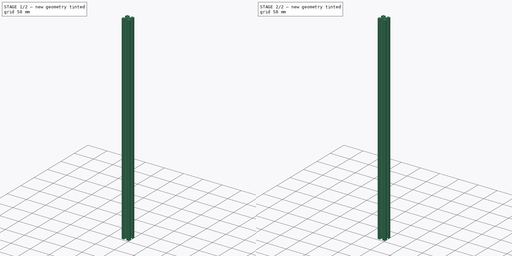
[diagram: build sequence overview — one tinted view per stage of 2, left to right]
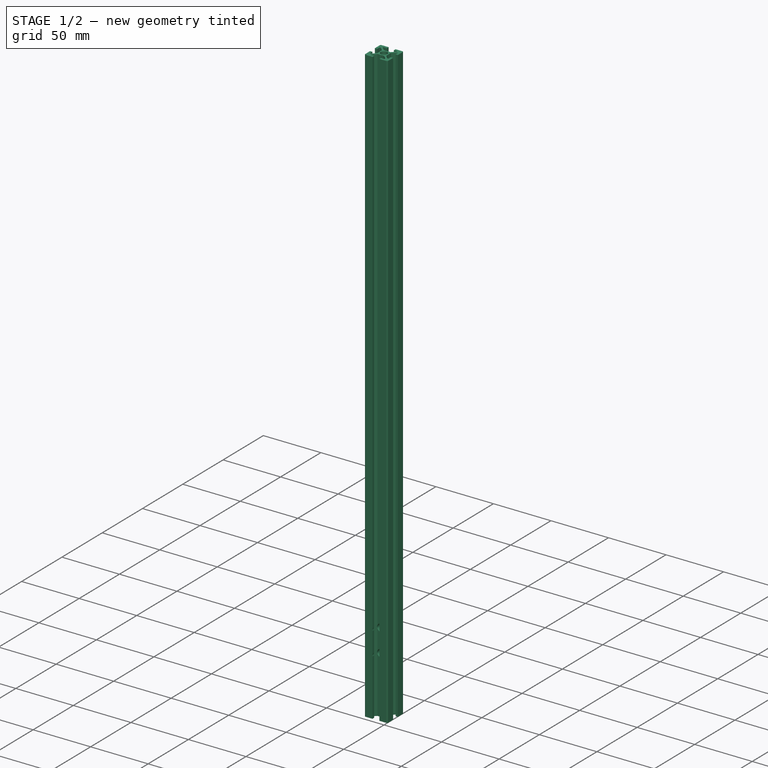
[diagram: stage 1 of 2 — iso view after this stage's code; geometry added in this stage tinted green]
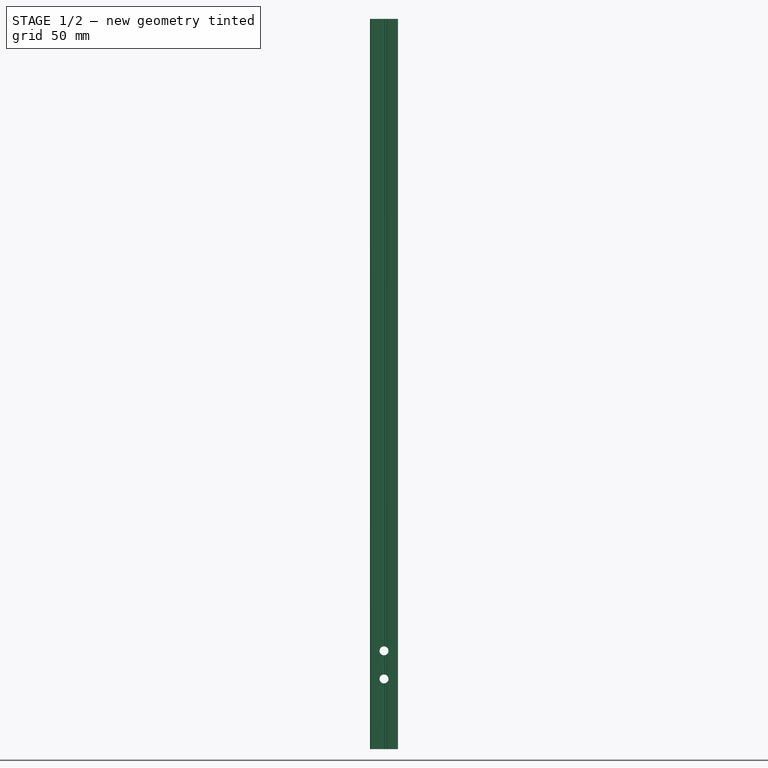
[diagram: stage 1 of 2 — front view after this stage's code; geometry added in this stage tinted green]
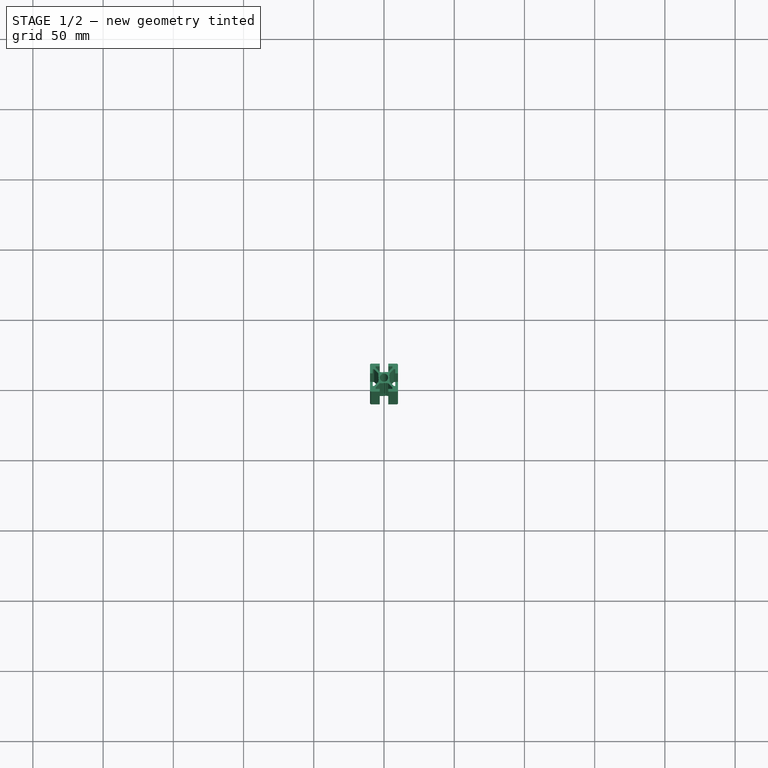
[diagram: stage 1 of 2 — top view after this stage's code; geometry added in this stage tinted green]
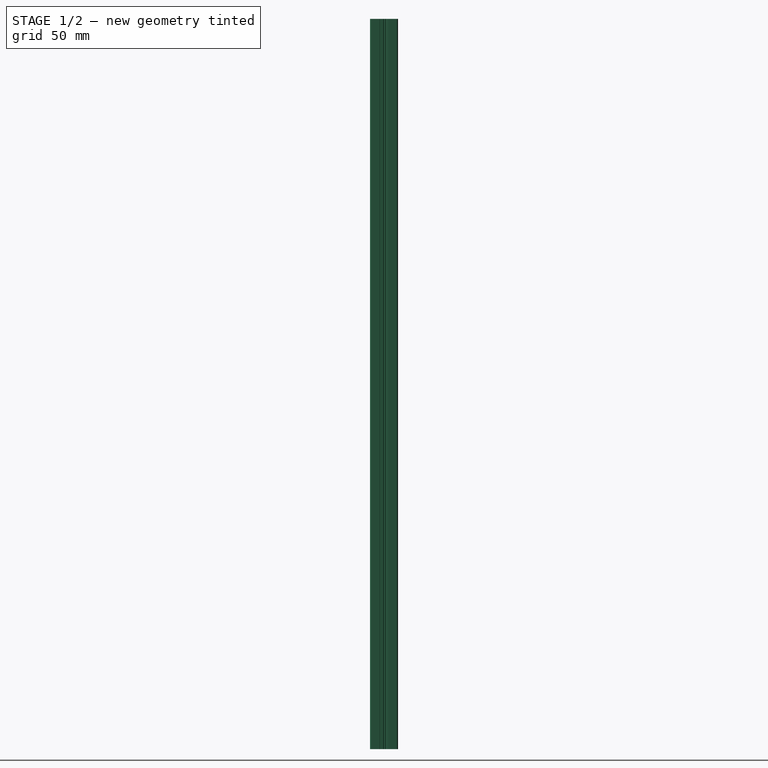
[diagram: stage 1 of 2 — right view after this stage's code; geometry added in this stage tinted green]
FCSTD DOCUMENT  (FreeCAD 0.17R13346 (Git))
Label: Z-Profile_2020
License: All rights reserved
LicenseURL: http://en.wikipedia.org/wiki/All_rights_reserved
objects: Sketcher::SketchObject×3, PartDesign::Pocket×2, PartDesign::Body×2, PartDesign::Pad×1
note: 11 computed .brp shape members not serialized (recipe doc carries the construction recipe); baked Part::Feature solids carry a one-line shape summary decoded from their .brp

FEATURE [Sketcher::SketchObject] Sketch001
  MapMode = 4
  sketch-geometry (77):
    g0: LineSegment StartX=-8 StartY=-3 StartZ=0 EndX=-10 EndY=-3 EndZ=0
    g1: LineSegment StartX=-10 StartY=-3 StartZ=0 EndX=-10 EndY=-9 EndZ=0
    g2: ArcOfCircle CenterX=-9 CenterY=-9 CenterZ=0 NormalX=0 NormalY=0 NormalZ=1 AngleXU=0 Radius=1 StartAngle=3.14159 EndAngle=4.71239
    g3: LineSegment StartX=-9 StartY=-10 StartZ=0 EndX=-3 EndY=-10 EndZ=0
    g4: LineSegment StartX=-3 StartY=-10 StartZ=0 EndX=-3 EndY=-8 EndZ=0
    g5: LineSegment StartX=-3 StartY=-8 StartZ=0 EndX=-6 EndY=-8 EndZ=0
    g6: LineSegment StartX=-6 StartY=-8 StartZ=0 EndX=-6 EndY=-7.06066 EndZ=0
    g7: LineSegment StartX=-6 StartY=-7.06066 StartZ=0 EndX=-2.93934 EndY=-4 EndZ=0
    g8: LineSegment StartX=-2.93934 StartY=-4 StartZ=0 EndX=-0.65359 EndY=-4 EndZ=0
    g9: ArcOfCircle CenterX=-0.65359 CenterY=-3.5 CenterZ=0 NormalX=0 NormalY=0 NormalZ=1 AngleXU=0 Radius=0.5 StartAngle=4.71239 EndAngle=5.23599
    g10: LineSegment StartX=-0.40359 StartY=-3.93301 StartZ=0 EndX=0 EndY=-3.7 EndZ=0
    g11: LineSegment StartX=0 StartY=-3.7 StartZ=0 EndX=0.40359 EndY=-3.93301 EndZ=0
    g12: ArcOfCircle CenterX=0.65359 CenterY=-3.5 CenterZ=0 NormalX=0 NormalY=0 NormalZ=1 AngleXU=0 Radius=0.5 StartAngle=4.18879 EndAngle=5.23599
    g13: LineSegment StartX=0.90359 StartY=-3.93301 StartZ=0 EndX=1.21889 EndY=-3.75098 EndZ=0
    g14: LineSegment StartX=1.21889 StartY=-3.75098 StartZ=0 EndX=2.5 EndY=-4 EndZ=0
    g15: LineSegment StartX=2.5 StartY=-4 StartZ=0 EndX=2.93934 EndY=-4 EndZ=0
    g16: LineSegment StartX=2.93934 StartY=-4 StartZ=0 EndX=6 EndY=-7.06066 EndZ=0
    g17: LineSegment StartX=6 StartY=-7.06066 StartZ=0 EndX=6 EndY=-8 EndZ=0
    g18: LineSegment StartX=6 StartY=-8 StartZ=0 EndX=3 EndY=-8 EndZ=0
    g19: LineSegment StartX=3 StartY=-8 StartZ=0 EndX=3 EndY=-10 EndZ=0
    g20: LineSegment StartX=3 StartY=-10 StartZ=0 EndX=9 EndY=-10 EndZ=0
    g21: ArcOfCircle CenterX=9 CenterY=-9 CenterZ=0 NormalX=0 NormalY=0 NormalZ=1 AngleXU=0 Radius=1 StartAngle=4.71239 EndAngle=6.28319
    g22: LineSegment StartX=10 StartY=-9 StartZ=0 EndX=10 EndY=-3 EndZ=0
    g23: LineSegment StartX=10 StartY=-3 StartZ=0 EndX=8 EndY=-3 EndZ=0
    g24: LineSegment StartX=8 StartY=-3 StartZ=0 EndX=8 EndY=-6 EndZ=0
    g25: LineSegment StartX=8 StartY=-6 StartZ=0 EndX=7.06066 EndY=-6 EndZ=0
    g26: LineSegment StartX=7.06066 StartY=-6 StartZ=0 EndX=4 EndY=-2.93934 EndZ=0
    g27: LineSegment StartX=4 StartY=-2.93934 StartZ=0 EndX=4 EndY=-0.65359 EndZ=0
    g28: ArcOfCircle CenterX=3.5 CenterY=-0.65359 CenterZ=0 NormalX=0 NormalY=0 NormalZ=1 AngleXU=0 Radius=0.5 StartAngle=0 EndAngle=0.523599
    g29: LineSegment StartX=3.93301 StartY=-0.40359 StartZ=0 EndX=3.7 EndY=0 EndZ=0
    g30: LineSegment StartX=3.7 StartY=0 StartZ=0 EndX=3.93301 EndY=0.40359 EndZ=0
    g31: ArcOfCircle CenterX=3.5 CenterY=0.65359 CenterZ=0 NormalX=0 NormalY=0 NormalZ=1 AngleXU=0 Radius=0.5 StartAngle=5.75959 EndAngle=6.80678
    g32: LineSegment StartX=3.93301 StartY=0.90359 StartZ=0 EndX=3.75098 EndY=1.21889 EndZ=0
    g33: LineSegment StartX=3.75098 StartY=1.21889 StartZ=0 EndX=4 EndY=2.5 EndZ=0
    g34: LineSegment StartX=4 StartY=2.5 StartZ=0 EndX=4 EndY=2.93934 EndZ=0
    g35: LineSegment StartX=4 StartY=2.93934 StartZ=0 EndX=7.06066 EndY=6 EndZ=0
    g36: LineSegment StartX=7.06066 StartY=6 StartZ=0 EndX=8 EndY=6 EndZ=0
    g37: LineSegment StartX=8 StartY=6 StartZ=0 EndX=8 EndY=3 EndZ=0
    g38: LineSegment StartX=8 StartY=3 StartZ=0 EndX=10 EndY=3 EndZ=0
    g39: LineSegment StartX=10 StartY=3 StartZ=0 EndX=10 EndY=9 EndZ=0
    g40: ArcOfCircle CenterX=9 CenterY=9 CenterZ=0 NormalX=0 NormalY=0 NormalZ=1 AngleXU=0 Radius=1 StartAngle=0 EndAngle=1.5708
    g41: LineSegment StartX=9 StartY=10 StartZ=0 EndX=3 EndY=10 EndZ=0
    g42: LineSegment StartX=3 StartY=10 StartZ=0 EndX=3 EndY=8 EndZ=0
    g43: LineSegment StartX=3 StartY=8 StartZ=0 EndX=6 EndY=8 EndZ=0
    g44: LineSegment StartX=6 StartY=8 StartZ=0 EndX=6 EndY=7.06066 EndZ=0
    g45: LineSegment StartX=6 StartY=7.06066 StartZ=0 EndX=2.93934 EndY=4 EndZ=0
    g46: LineSegment StartX=2.93934 StartY=4 StartZ=0 EndX=0.65359 EndY=4 EndZ=0
    g47: ArcOfCircle CenterX=0.65359 CenterY=3.5 CenterZ=0 NormalX=0 NormalY=0 NormalZ=1 AngleXU=0 Radius=0.5 StartAngle=1.5708 EndAngle=2.0944
    g48: LineSegment StartX=0.40359 StartY=3.93301 StartZ=0 EndX=0 EndY=3.7 EndZ=0
    g49: LineSegment StartX=0 StartY=3.7 StartZ=0 EndX=-0.40359 EndY=3.93301 EndZ=0
    g50: ArcOfCircle CenterX=-0.65359 CenterY=3.5 CenterZ=0 NormalX=0 NormalY=0 NormalZ=1 AngleXU=0 Radius=0.5 StartAngle=1.0472 EndAngle=2.0944
    g51: LineSegment StartX=-0.90359 StartY=3.93301 StartZ=0 EndX=-1.21889 EndY=3.75098 EndZ=0
    g52: LineSegment StartX=-1.21889 StartY=3.75098 StartZ=0 EndX=-2.5 EndY=4 EndZ=0
    g53: LineSegment StartX=-2.5 StartY=4 StartZ=0 EndX=-2.93934 EndY=4 EndZ=0
    g54: LineSegment StartX=-2.93934 StartY=4 StartZ=0 EndX=-6 EndY=7.06066 EndZ=0
    g55: LineSegment StartX=-6 StartY=7.06066 StartZ=0 EndX=-6 EndY=8 EndZ=0
    g56: LineSegment StartX=-6 StartY=8 StartZ=0 EndX=-3 EndY=8 EndZ=0
    g57: LineSegment StartX=-3 StartY=8 StartZ=0 EndX=-3 EndY=10 EndZ=0
    g58: LineSegment StartX=-3 StartY=10 StartZ=0 EndX=-9 EndY=10 EndZ=0
    g59: ArcOfCircle CenterX=-9 CenterY=9 CenterZ=0 NormalX=0 NormalY=0 NormalZ=1 AngleXU=0 Radius=1 StartAngle=1.5708 EndAngle=3.14159
    g60: LineSegment StartX=-10 StartY=9 StartZ=0 EndX=-10 EndY=3 EndZ=0
    g61: LineSegment StartX=-10 StartY=3 StartZ=0 EndX=-8 EndY=3 EndZ=0
    g62: LineSegment StartX=-8 StartY=3 StartZ=0 EndX=-8 EndY=6 EndZ=0
    g63: LineSegment StartX=-8 StartY=6 StartZ=0 EndX=-7.06066 EndY=6 EndZ=0
    g64: LineSegment StartX=-7.06066 StartY=6 StartZ=0 EndX=-4 EndY=2.93934 EndZ=0
    g65: LineSegment StartX=-4 StartY=2.93934 StartZ=0 EndX=-4 EndY=0.65359 EndZ=0
    g66: ArcOfCircle CenterX=-3.5 CenterY=0.65359 CenterZ=0 NormalX=0 NormalY=0 NormalZ=1 AngleXU=0 Radius=0.5 StartAngle=3.14159 EndAngle=3.66519
    g67: LineSegment StartX=-3.93301 StartY=0.40359 StartZ=0 EndX=-3.7 EndY=0 EndZ=0
    g68: LineSegment StartX=-3.7 StartY=0 StartZ=0 EndX=-3.93301 EndY=-0.40359 EndZ=0
    g69: ArcOfCircle CenterX=-3.5 CenterY=-0.65359 CenterZ=0 NormalX=0 NormalY=0 NormalZ=1 AngleXU=0 Radius=0.5 StartAngle=2.61799 EndAngle=3.66519
    g70: LineSegment StartX=-3.93301 StartY=-0.90359 StartZ=0 EndX=-3.75098 EndY=-1.21889 EndZ=0
    g71: LineSegment StartX=-3.75098 StartY=-1.21889 StartZ=0 EndX=-4 EndY=-2.5 EndZ=0
    g72: LineSegment StartX=-4 StartY=-2.5 StartZ=0 EndX=-4 EndY=-2.93934 EndZ=0
    g73: LineSegment StartX=-4 StartY=-2.93934 StartZ=0 EndX=-7.06066 EndY=-6 EndZ=0
    g74: LineSegment StartX=-7.06066 StartY=-6 StartZ=0 EndX=-8 EndY=-6 EndZ=0
    g75: LineSegment StartX=-8 StartY=-6 StartZ=0 EndX=-8 EndY=-3 EndZ=0
    g76: Circle CenterX=0 CenterY=0 CenterZ=0 NormalX=0 NormalY=0 NormalZ=1 AngleXU=0 Radius=2.9
  constraints (105):
    c: Horizontal(g0)
    c: Coincident(g0,g1)
    c: Vertical(g1)
    c: Coincident(g1,g2)
    c: Coincident(g2,g3)
    c: Horizontal(g3)
    c: Coincident(g3,g4)
    c: Coincident(g4,g5)
    c: Horizontal(g5)
    c: Coincident(g5,g6)
    c: Coincident(g6,g7)
    c: Coincident(g7,g8)
    c: Horizontal(g8)
    c: Coincident(g8,g9)
    c: Coincident(g9,g10)
    c: Coincident(g10,g11)
    c: Coincident(g11,g12)
    c: Coincident(g12,g13)
    c: Coincident(g13,g14)
    c: Coincident(g14,g15)
    c: Horizontal(g15)
    c: Coincident(g15,g16)
    c: Coincident(g16,g17)
    c: Coincident(g17,g18)
    c: Coincident(g18,g19)
    c: Vertical(g19)
    c: Coincident(g19,g20)
    c: Horizontal(g20)
    c: Coincident(g20,g21)
    c: Coincident(g21,g22)
    c: Vertical(g22)
    c: Coincident(g22,g23)
    c: Horizontal(g23)
    c: Coincident(g23,g24)
    c: Vertical(g24)
    c: Coincident(g24,g25)
    c: Coincident(g25,g26)
    c: Coincident(g26,g27)
    c: Vertical(g27)
    c: Coincident(g27,g28)
    c: Coincident(g28,g29)
    c: Coincident(g29,g30)
    c: Coincident(g30,g31)
    c: Coincident(g31,g32)
    c: Coincident(g32,g33)
    c: Coincident(g33,g34)
    c: Vertical(g34)
    c: Coincident(g34,g35)
    c: Coincident(g35,g36)
    c: Coincident(g36,g37)
    c: Coincident(g37,g38)
    c: Horizontal(g38)
    c: Coincident(g38,g39)
    c: Vertical(g39)
    c: Coincident(g39,g40)
    c: Coincident(g40,g41)
    c: Horizontal(g41)
    c: Coincident(g41,g42)
    c: Coincident(g42,g43)
    c: Horizontal(g43)
    c: Coincident(g43,g44)
    c: Coincident(g44,g45)
    c: Coincident(g45,g46)
    c: Horizontal(g46)
    c: Coincident(g46,g47)
    c: Coincident(g47,g48)
    c: Coincident(g48,g49)
    c: Coincident(g49,g50)
    c: Coincident(g50,g51)
    c: Coincident(g51,g52)
    c: Coincident(g52,g53)
    c: Horizontal(g53)
    c: Coincident(g53,g54)
    c: Coincident(g54,g55)
    c: Vertical(g55)
    c: Coincident(g55,g56)
    c: Coincident(g56,g57)
    c: Vertical(g57)
    c: Coincident(g57,g58)
    c: Horizontal(g58)
    c: Coincident(g58,g59)
    c: Coincident(g59,g60)
    c: Vertical(g60)
    c: Coincident(g60,g61)
    c: Horizontal(g61)
    c: Coincident(g61,g62)
    c: Vertical(g62)
    c: Coincident(g62,g63)
    c: Horizontal(g63)
    c: Coincident(g63,g64)
    c: Coincident(g64,g65)
    c: Vertical(g65)
    c: Coincident(g65,g66)
    c: Coincident(g66,g67)
    c: Coincident(g67,g68)
    c: Coincident(g68,g69)
    c: Coincident(g69,g70)
    c: Coincident(g70,g71)
    c: Coincident(g71,g72)
    c: Vertical(g72)
    c: Coincident(g72,g73)
    c: Coincident(g73,g74)
    c: Coincident(g74,g75)
    c: Coincident(g75,g0)
    c: Radius(g76) = 2.9
FEATURE [PartDesign::Pad] Pad
  Length = 520
  Length2 = 100
  Profile = -> Sketch001
  Type = 0
FEATURE [Sketcher::SketchObject] Sketch
  MapMode = 5
  Placement = pos=(0,-10,0) rot=(1,0,0;1.5708rad)
  Support = -> [Pad]
  sketch-geometry (2):
    g0: Circle CenterX=0 CenterY=70 CenterZ=0 NormalX=0 NormalY=0 NormalZ=1 AngleXU=0 Radius=3.175
    g1: Circle CenterX=0 CenterY=50 CenterZ=0 NormalX=0 NormalY=0 NormalZ=1 AngleXU=0 Radius=3.175
  constraints (6):
    c: DistanceX(g1) = 0
    c: DistanceY(g1) = 50
    c: DistanceX(g0) = 0
    c: DistanceY(g0) = 70
    c: Equal(g1,g0)
    c: Radius(g0) = 3.175
FEATURE [PartDesign::Pocket] Pocket
  BaseFeature = -> Pad
  Length = 5
  Length2 = 100
  Profile = -> Sketch
  Type = 1
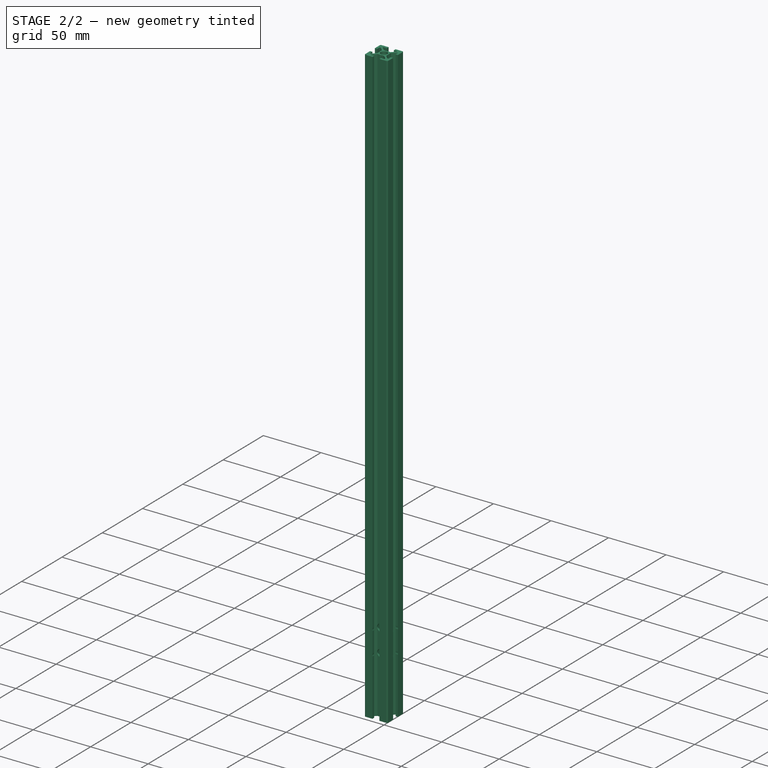
[diagram: stage 2 of 2 — iso view after this stage's code; geometry added in this stage tinted green]
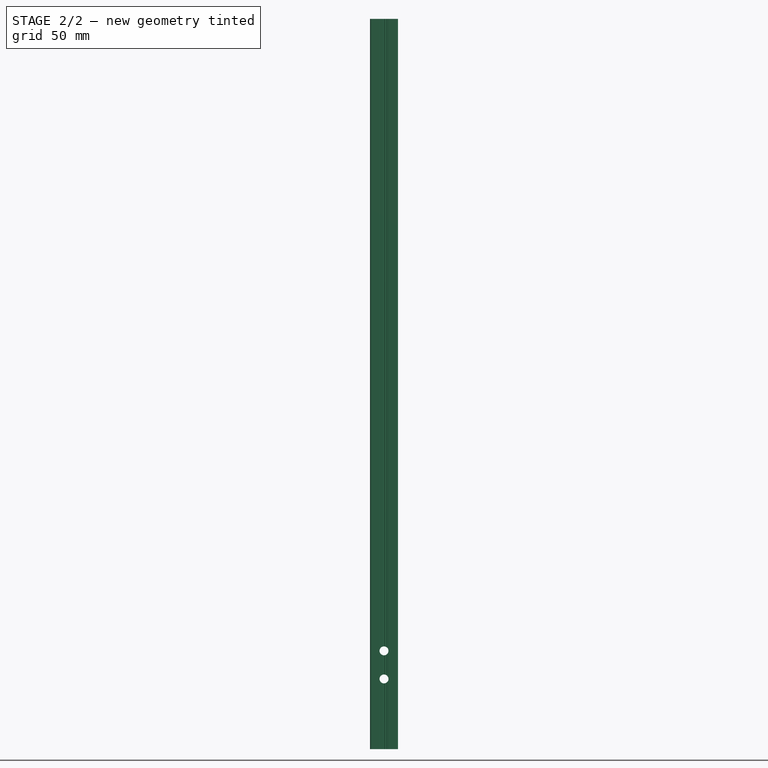
[diagram: stage 2 of 2 — front view after this stage's code; geometry added in this stage tinted green]
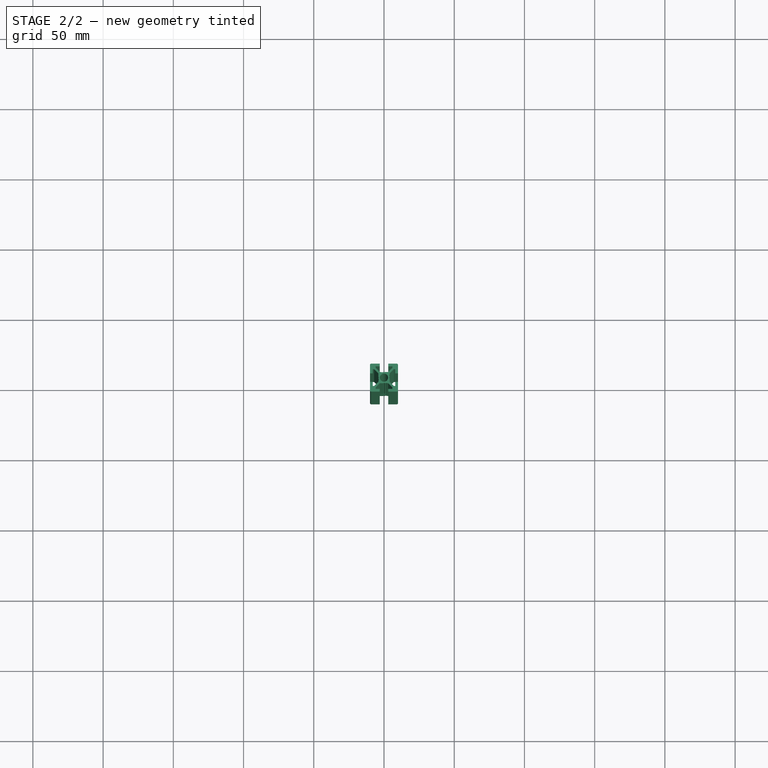
[diagram: stage 2 of 2 — top view after this stage's code; geometry added in this stage tinted green]
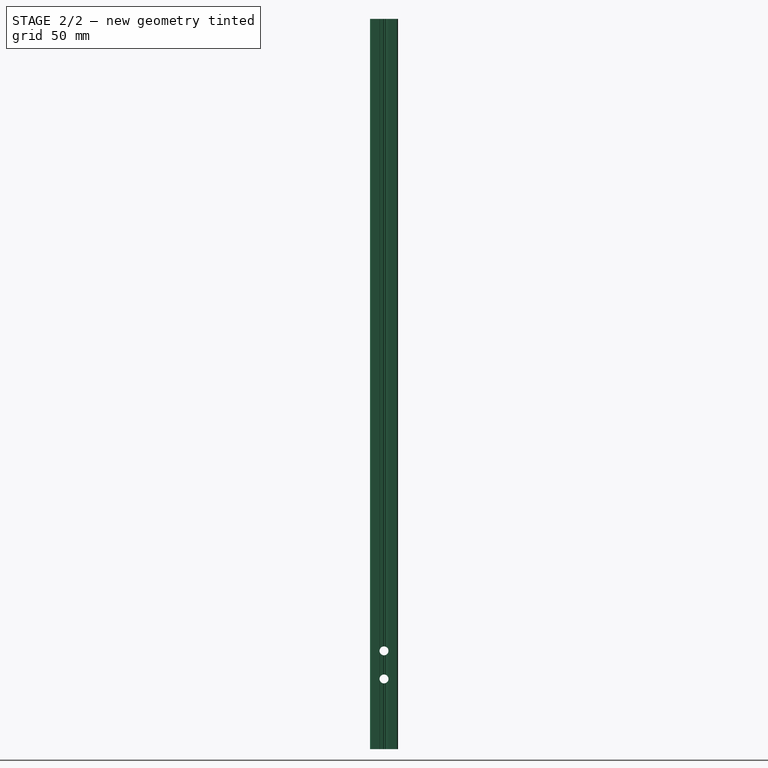
[diagram: stage 2 of 2 — right view after this stage's code; geometry added in this stage tinted green]
FEATURE [Sketcher::SketchObject] Sketch002
  MapMode = 5
  Placement = pos=(-10,0,0) rot=(0.57735,-0.57735,-0.57735;2.0944rad)
  Support = -> [Pocket]
  sketch-geometry (2):
    g0: Circle CenterX=0 CenterY=50 CenterZ=0 NormalX=0 NormalY=0 NormalZ=1 AngleXU=0 Radius=3.175
    g1: Circle CenterX=0 CenterY=70 CenterZ=0 NormalX=0 NormalY=0 NormalZ=1 AngleXU=0 Radius=3.175
  constraints (6):
    c: Equal(g1,g0)
    c: Radius(g1) = 3.175
    c: DistanceX(g0) = 0
    c: DistanceY(g0) = 50
    c: DistanceX(g1) = 0
    c: DistanceY(g1) = 70
FEATURE [PartDesign::Pocket] Pocket001
  BaseFeature = -> Pocket
  Length = 5
  Length2 = 100
  Profile = -> Sketch002
  Type = 1
FEATURE [PartDesign::Body] Body
  Group = -> [Sketch001,Pad,Sketch,Pocket,Sketch002,Pocket001]
  Origin = -> Origin
  Tip = -> Pocket001
FEATURE [PartDesign::Body] Body001
  Origin = -> Origin001
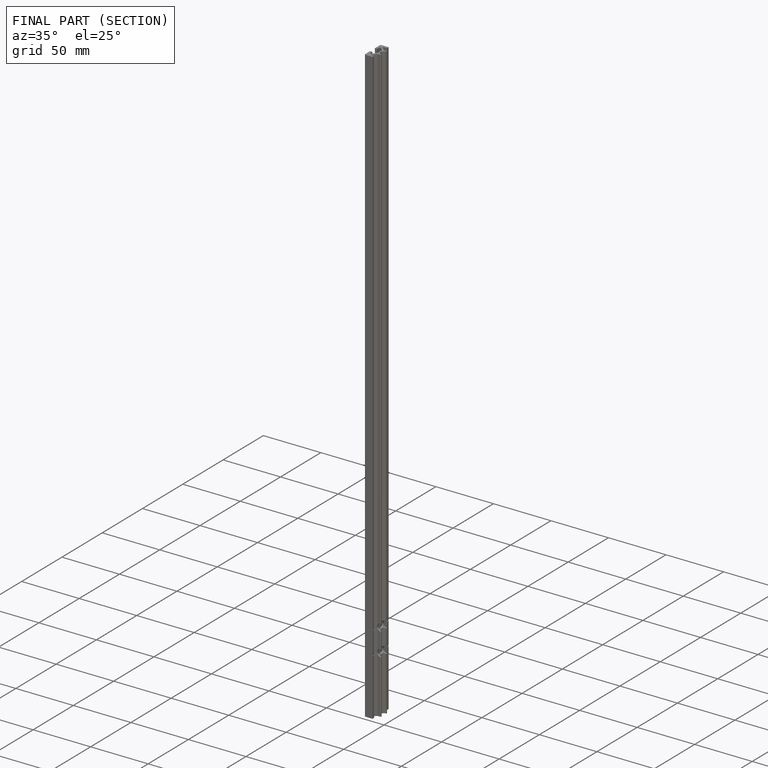
[diagram: finished part — half-section view (interior)]
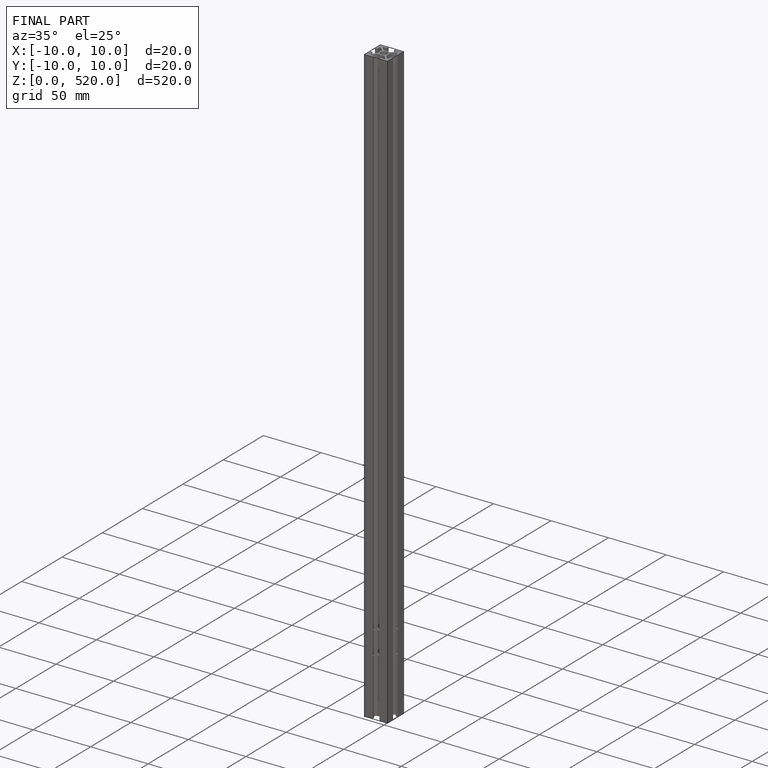
[diagram: finished part — iso view with bounding-box wireframe]
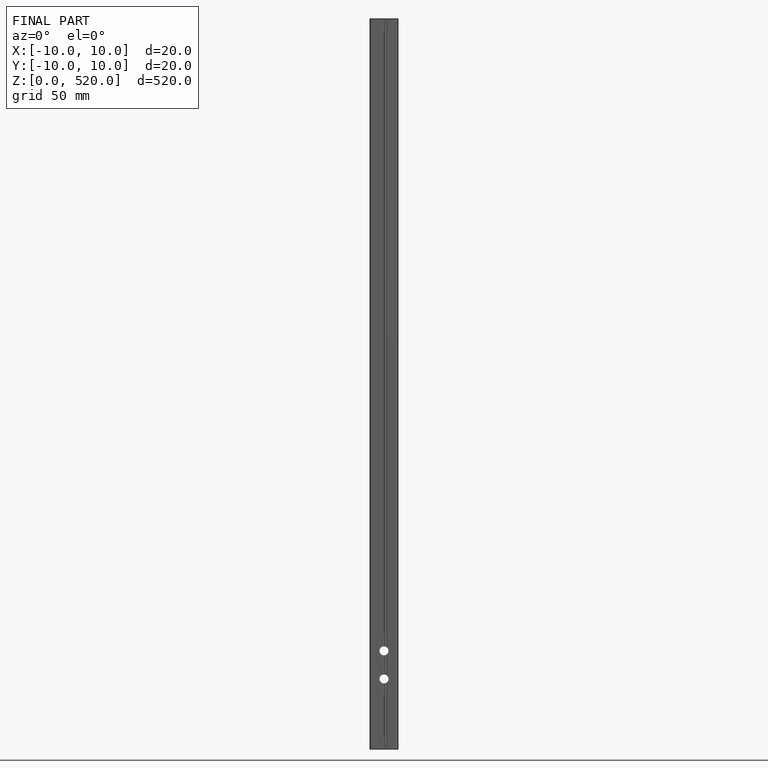
[diagram: finished part — front view with bounding-box wireframe]
